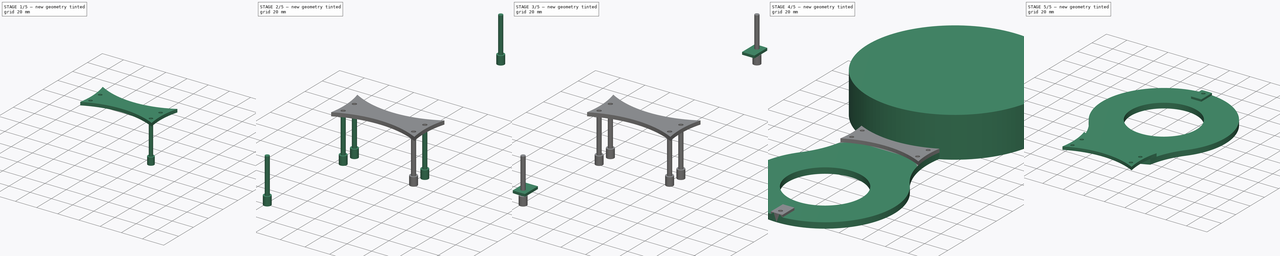
[diagram: build sequence overview — one tinted view per stage of 5, left to right]
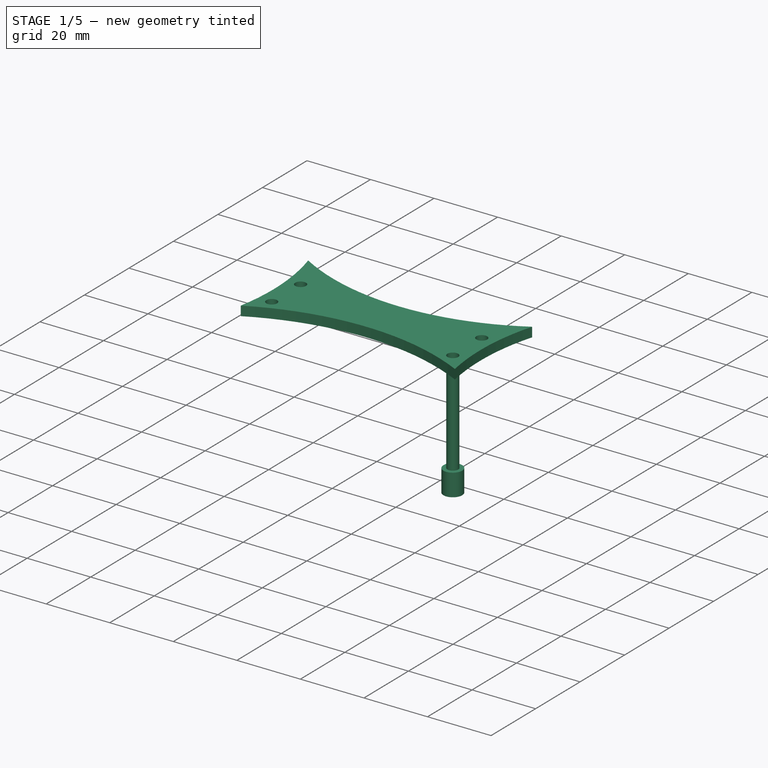
[diagram: stage 1 of 5 — iso view after this stage's code; geometry added in this stage tinted green]
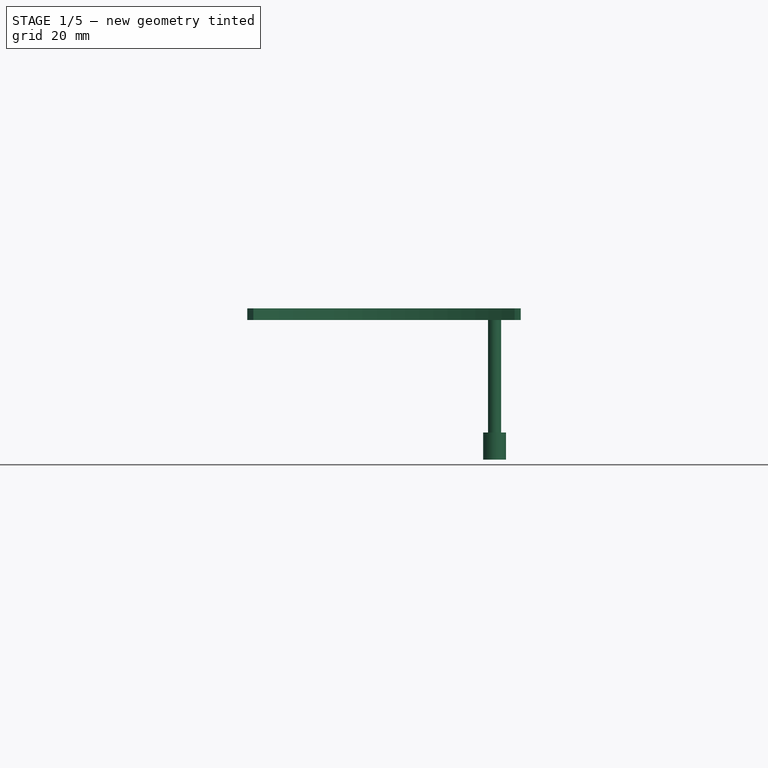
[diagram: stage 1 of 5 — front view after this stage's code; geometry added in this stage tinted green]
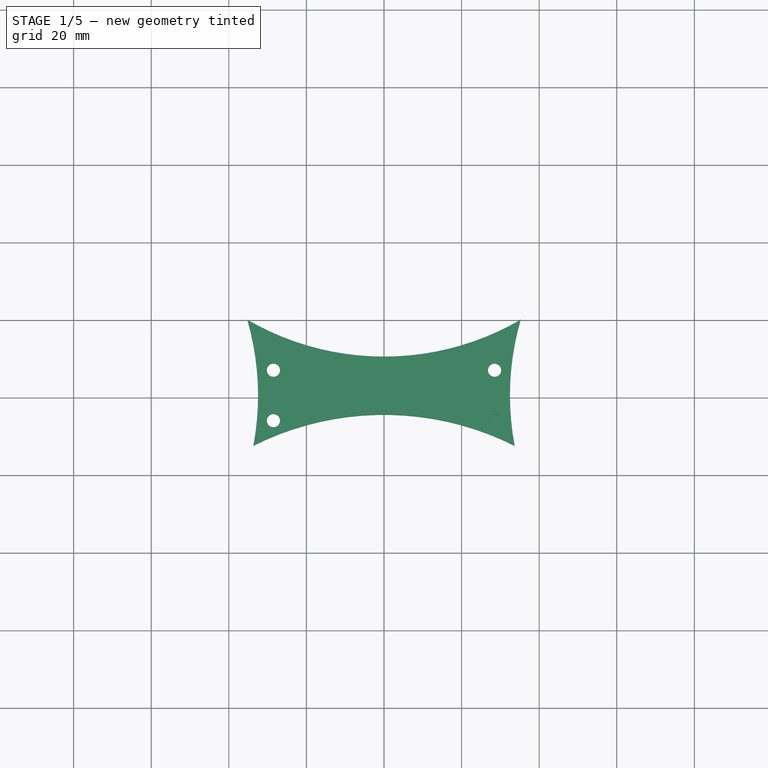
[diagram: stage 1 of 5 — top view after this stage's code; geometry added in this stage tinted green]
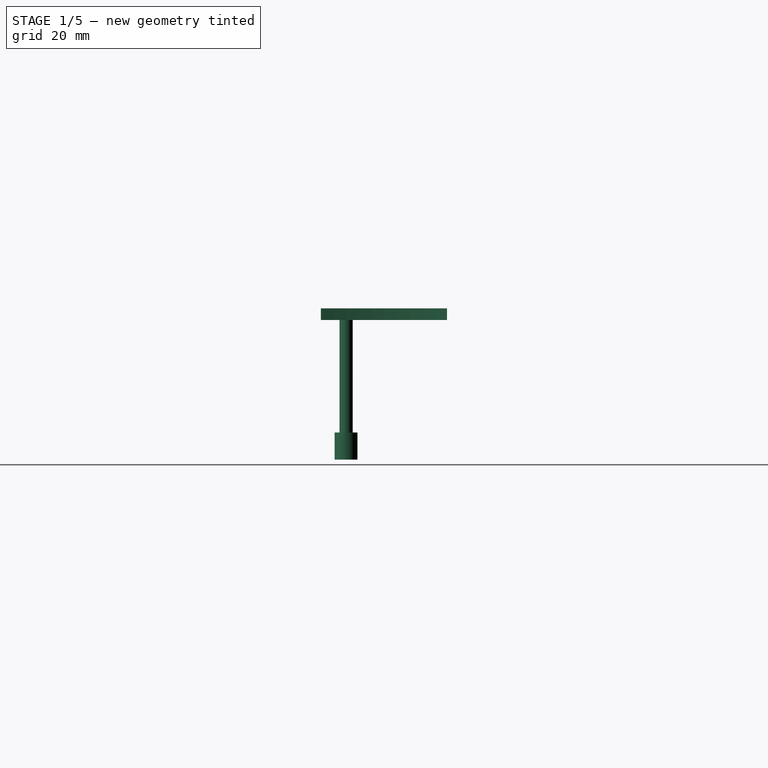
[diagram: stage 1 of 5 — right view after this stage's code; geometry added in this stage tinted green]
FCSTD DOCUMENT  (FreeCAD 0.16R6703 (Git))
Label: Art2BodyBCover
License: All rights reserved
LicenseURL: http://en.wikipedia.org/wiki/All_rights_reserved
objects: Part::FeaturePython×11, Part::MultiFuse×4, Sketcher::SketchObject×4, PartDesign::Pad×4, Part::Cut×3, Part::Cylinder×2, App::DocumentObjectGroup×1
note: 32 computed .brp shape members not serialized (recipe doc carries the construction recipe); baked Part::Feature solids carry a one-line shape summary decoded from their .brp

FEATURE [Part::Cylinder] Cylinder  label="M3BoltHead"
  Angle = 360
  Height = 7
  Radius = 2.95
FEATURE [Part::Cylinder] Cylinder001  label="M3BoltBody"
  Angle = 360
  Height = 30
  Placement = pos=(0,0,6) rot=(0,0,1;0rad)
  Radius = 1.7
FEATURE [Part::MultiFuse] Fusion  label="M3Bolt"
  Shapes = -> [Cylinder001,Cylinder]
FEATURE [Part::FeaturePython] Clone192  label="Clone of M3Bolt058"  # Draft clone (typed FeaturePython)
  Objects = -> [Fusion]
  Placement = pos=(28.5,73.5,-31) rot=(0,0,1;0rad)
  Scale = (1,1,1)
FEATURE [Sketcher::SketchObject] Sketch023
  Placement = pos=(0,0,5) rot=(0,0,1;0rad)
  sketch-geometry (10):
    g0: ArcOfCircle CenterX=0 CenterY=0 CenterZ=0 NormalX=0 NormalY=0 NormalZ=1 Radius=75 StartAngle=1.10499 EndAngle=2.0366
    g1: ArcOfCircle CenterX=0 CenterY=160 CenterZ=0 NormalX=0 NormalY=0 NormalZ=1 Radius=70 StartAngle=4.18472 EndAngle=5.24006
    g2: ArcOfCircle CenterX=102.47 CenterY=80 CenterZ=0 NormalX=0 NormalY=0 NormalZ=1 Radius=70 StartAngle=2.85897 EndAngle=3.32825
    g3: ArcOfCircle CenterX=-102.47 CenterY=80 CenterZ=0 NormalX=0 NormalY=0 NormalZ=1 Radius=70 StartAngle=6.09653 EndAngle=6.56581
    g4: LineSegment [constr] StartX=-102.47 StartY=80 StartZ=0 EndX=102.47 EndY=80 EndZ=0
    g5: Circle [constr] CenterX=0 CenterY=160 CenterZ=0 NormalX=0 NormalY=0 NormalZ=1 Radius=60
    g6: Circle CenterX=-28.5 CenterY=73.5 CenterZ=0 NormalX=0 NormalY=0 NormalZ=1 Radius=1.7
    g7: Circle CenterX=-28.5 CenterY=86.5 CenterZ=0 NormalX=0 NormalY=0 NormalZ=1 Radius=1.7
    g8: Circle CenterX=28.5 CenterY=86.5 CenterZ=0 NormalX=0 NormalY=0 NormalZ=1 Radius=1.7
    g9: Circle CenterX=28.5 CenterY=73.5 CenterZ=0 NormalX=0 NormalY=0 NormalZ=1 Radius=1.7
  constraints (28):
    c: Coincident(g0,g-1)
    c: PointOnObject(g1,g-2)
    c: Coincident(g2,g1)
    c: Coincident(g2,g0)
    c: Coincident(g3,g1)
    c: Coincident(g3,g0)
    c: Equal(g3,g2)
    c: Coincident(g4,g3)
    c: Coincident(g4,g2)
    c: Horizontal(g4)
    c: Radius(g0) = 75
    c: DistanceY(g-1,g1) = 160
    c: DistanceY(g-1,g2) = 80
    c: Coincident(g5,g1)
    c: Radius(g5) = 60
    c: Symmetric(g2,g3,g-2)
    c: Radius(g1) = 70
    c: Tangent(g2,g5)
    c: Radius(g2) = 70
    c: Equal(g9,g8)
    c: Equal(g8,g7)
    c: Equal(g7,g6)
    c: Symmetric(g6,g7,g4)
    c: Symmetric(g6,g9,g-2)
    c: Symmetric(g9,g8,g4)
    c: DistanceY(g6,g7) = 13
    c: DistanceX(g7,g8) = 57
    c: Radius(g6) = 1.7
FEATURE [PartDesign::Pad] Pad
  Length = 3
  Length2 = 100
  Placement = pos=(0,0,5) rot=(0,0,1;0rad)
  Sketch = -> Sketch023
  Type = 0
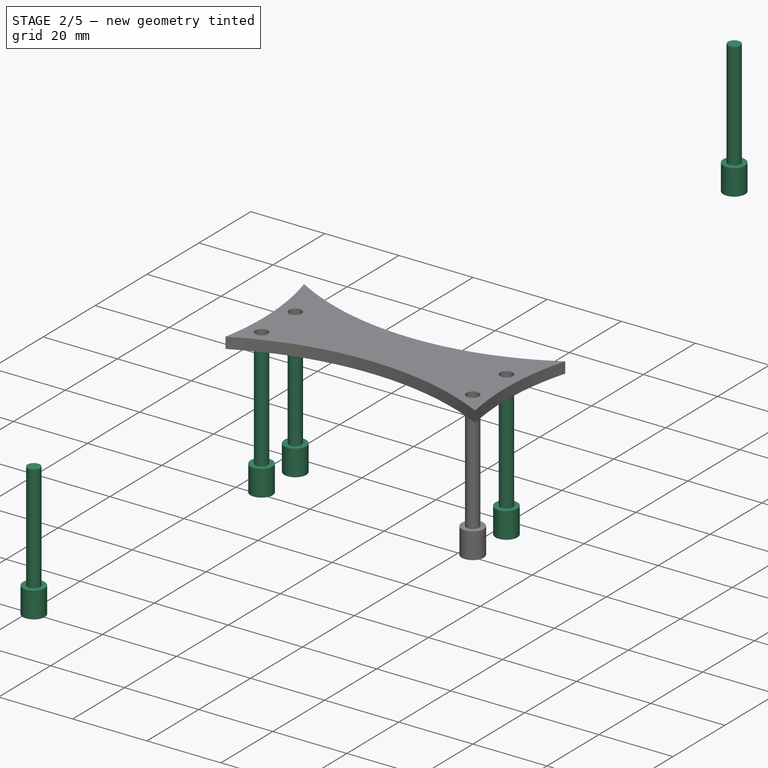
[diagram: stage 2 of 5 — iso view after this stage's code; geometry added in this stage tinted green]
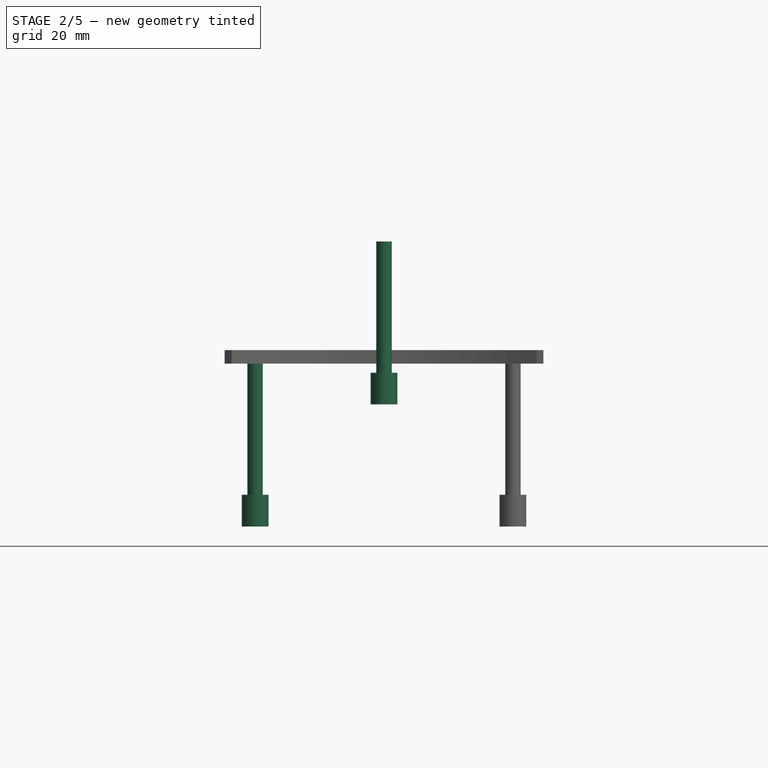
[diagram: stage 2 of 5 — front view after this stage's code; geometry added in this stage tinted green]
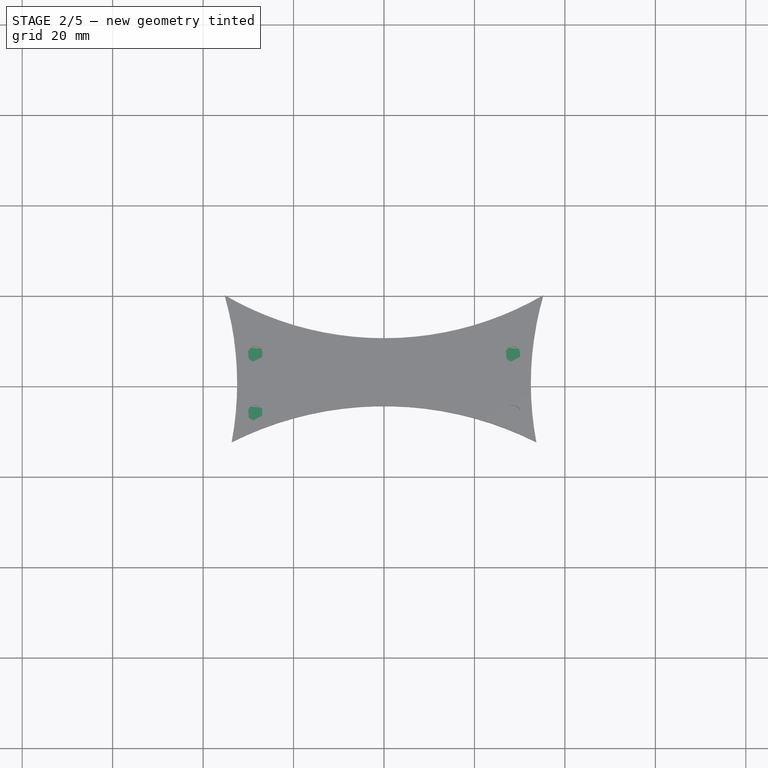
[diagram: stage 2 of 5 — top view after this stage's code; geometry added in this stage tinted green]
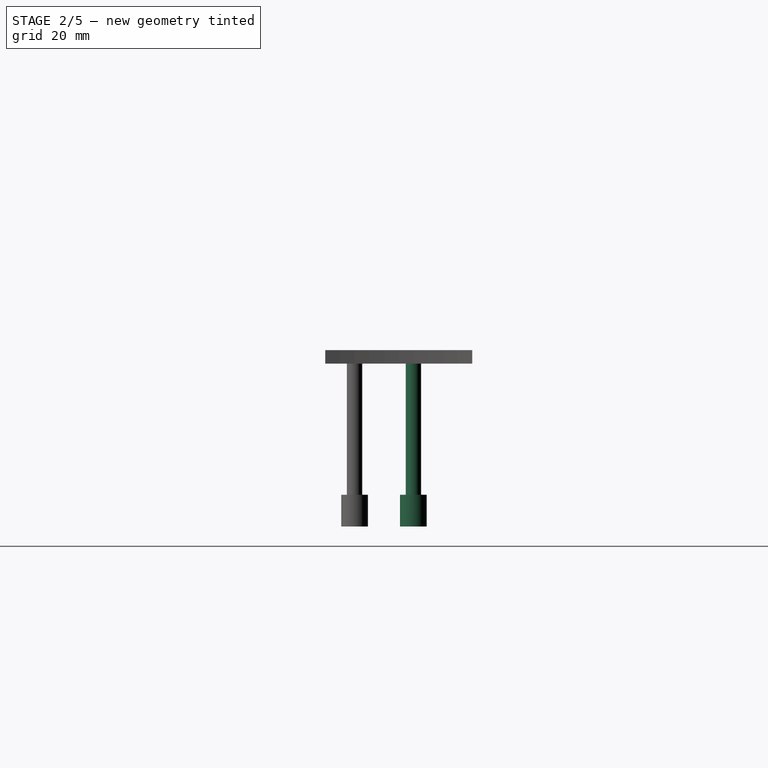
[diagram: stage 2 of 5 — right view after this stage's code; geometry added in this stage tinted green]
FEATURE [Part::FeaturePython] Clone186  label="Clone of M3Bolt053"  # Draft clone (typed FeaturePython)
  Objects = -> [Fusion]
  Placement = pos=(0,215,-4) rot=(0,0,1;0rad)
  Scale = (1,1,1)
FEATURE [Part::FeaturePython] Clone187  label="Clone of M3Bolt054"  # Draft clone (typed FeaturePython)
  Objects = -> [Fusion]
  Placement = pos=(0,-55,-4) rot=(0,0,1;0rad)
  Scale = (1,1,1)
FEATURE [Part::FeaturePython] Clone189  label="Clone of M3Bolt055"  # Draft clone (typed FeaturePython)
  Objects = -> [Fusion]
  Placement = pos=(-28.5,86.5,-31) rot=(0,0,1;0rad)
  Scale = (1,1,1)
FEATURE [Part::FeaturePython] Clone190  label="Clone of M3Bolt056"  # Draft clone (typed FeaturePython)
  Objects = -> [Fusion]
  Placement = pos=(-28.5,73.5,-31) rot=(0,0,1;0rad)
  Scale = (1,1,1)
FEATURE [Part::FeaturePython] Clone191  label="Clone of M3Bolt057"  # Draft clone (typed FeaturePython)
  Objects = -> [Fusion]
  Placement = pos=(28.5,86.5,-31) rot=(0,0,1;0rad)
  Scale = (1,1,1)
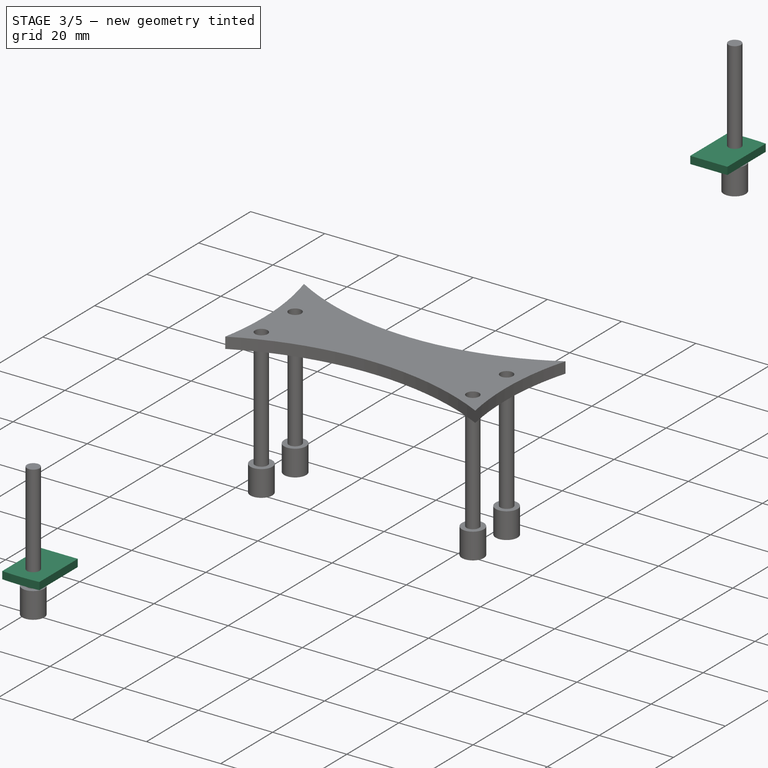
[diagram: stage 3 of 5 — iso view after this stage's code; geometry added in this stage tinted green]
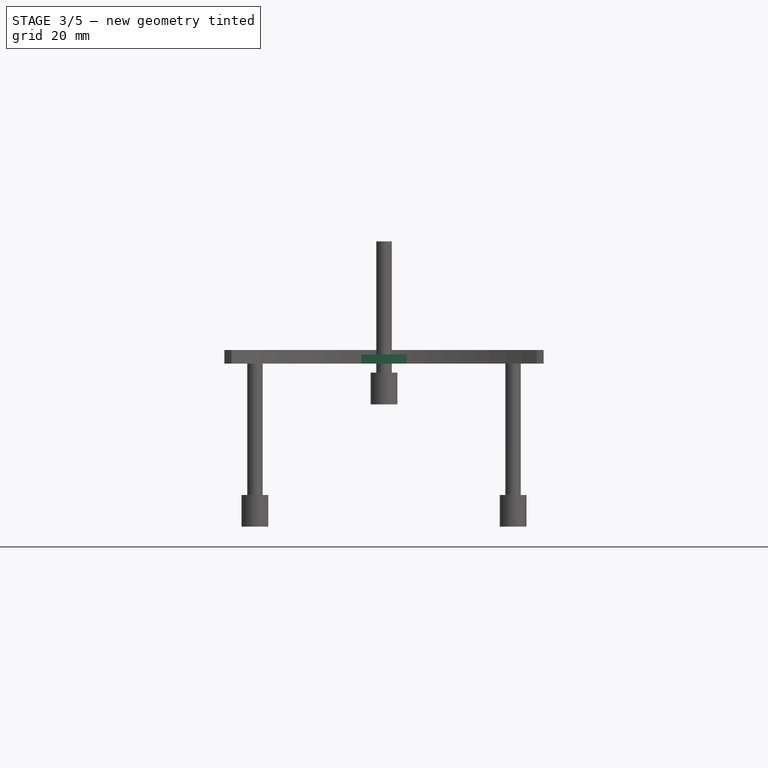
[diagram: stage 3 of 5 — front view after this stage's code; geometry added in this stage tinted green]
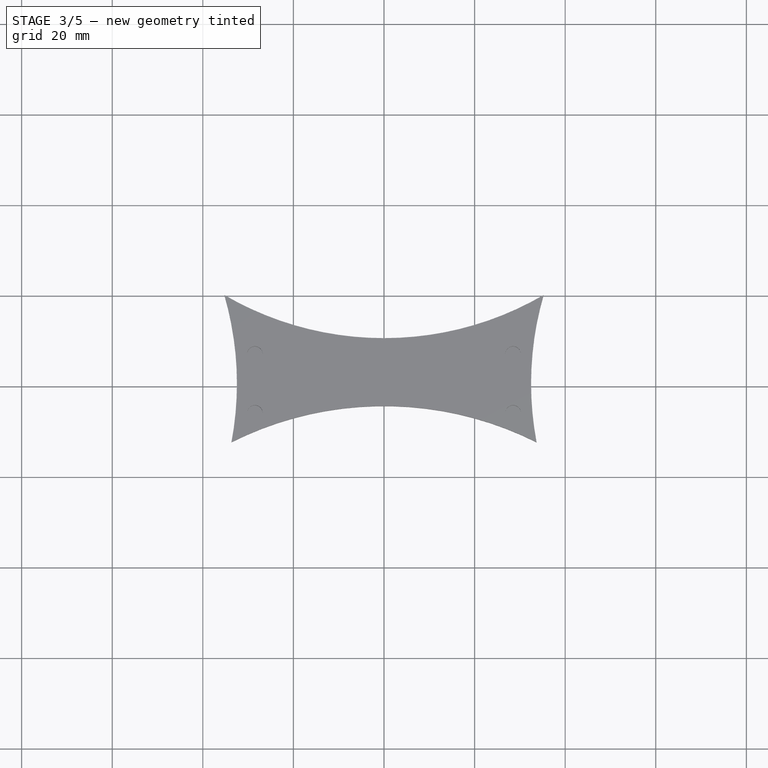
[diagram: stage 3 of 5 — top view after this stage's code; geometry added in this stage tinted green]
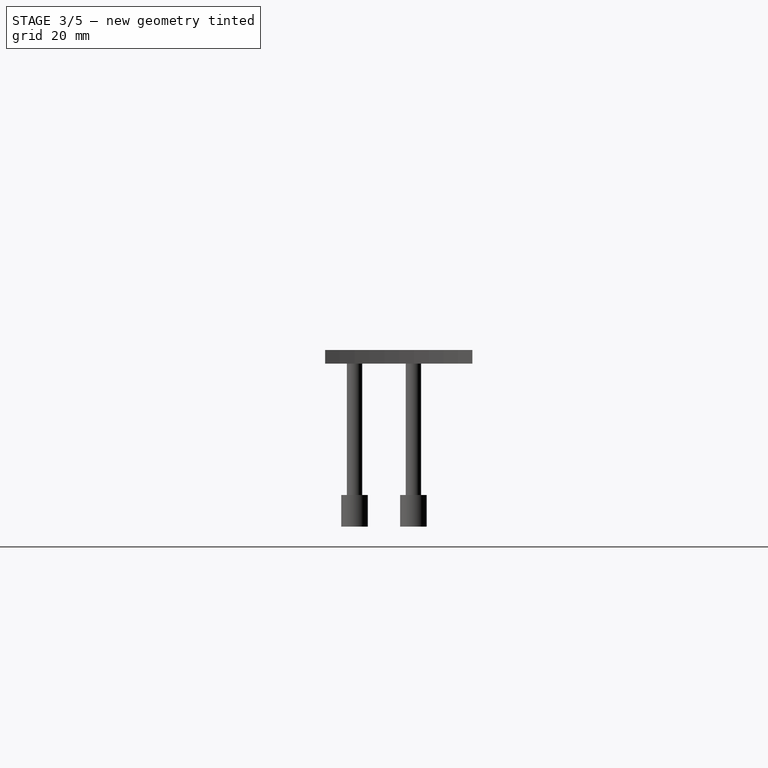
[diagram: stage 3 of 5 — right view after this stage's code; geometry added in this stage tinted green]
FEATURE [Sketcher::SketchObject] Sketch032
  sketch-geometry (4):
    g0: ArcOfCircle CenterX=0 CenterY=0 CenterZ=0 NormalX=0 NormalY=0 NormalZ=1 Radius=60 StartAngle=1.48737 EndAngle=1.65423
    g1: LineSegment StartX=5 StartY=59.7913 StartZ=0 EndX=5 EndY=45 EndZ=0
    g2: LineSegment StartX=5 StartY=45 StartZ=0 EndX=-5 EndY=45 EndZ=0
    g3: LineSegment StartX=-5 StartY=45 StartZ=0 EndX=-5 EndY=59.7913 EndZ=0
  constraints (12):
    c: Coincident(g0,g-1)
    c: Coincident(g1,g2)
    c: Coincident(g2,g3)
    c: Horizontal(g2)
    c: Vertical(g1)
    c: Vertical(g3)
    c: Radius(g0) = 60
    c: DistanceX(g2) = -10
    c: DistanceX(g-1,g1) = 5
    c: DistanceY(g-1,g1) = 45
    c: Coincident(g0,g1)
    c: Coincident(g0,g3)
FEATURE [PartDesign::Pad] Pad023  label="Art2CoverSupportMaster"
  Length = 2
  Length2 = 100
  Sketch = -> Sketch032
  Type = 0
FEATURE [Part::FeaturePython] Clone184  label="Clone of Art2CoverSupportMaster"  # Draft clone (typed FeaturePython)
  Objects = -> [Pad023]
  Placement = pos=(0,160,5) rot=(0,0,1;0rad)
  Scale = (1,1,1)
FEATURE [Part::FeaturePython] Clone185  label="Clone of Art2CoverSupportMaster001"  # Draft clone (typed FeaturePython)
  Objects = -> [Pad023]
  Placement = pos=(0,0,5) rot=(0,0,1;3.14159rad)
  Scale = (1,1,1)
FEATURE [Part::MultiFuse] Fusion070
  Shapes = -> [Clone189,Clone191,Clone190,Clone192,Clone186,Clone187]
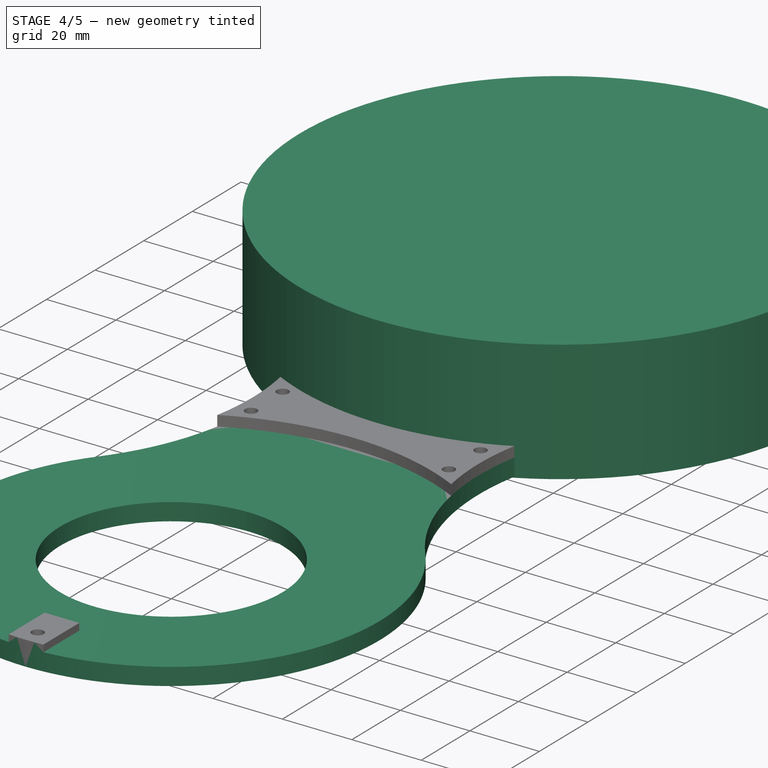
[diagram: stage 4 of 5 — iso view after this stage's code; geometry added in this stage tinted green]
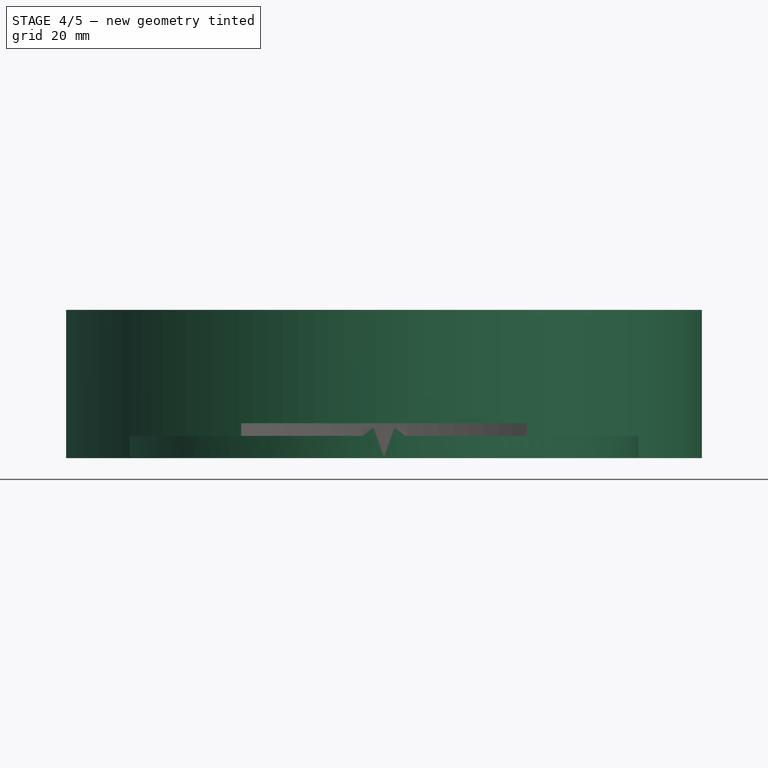
[diagram: stage 4 of 5 — front view after this stage's code; geometry added in this stage tinted green]
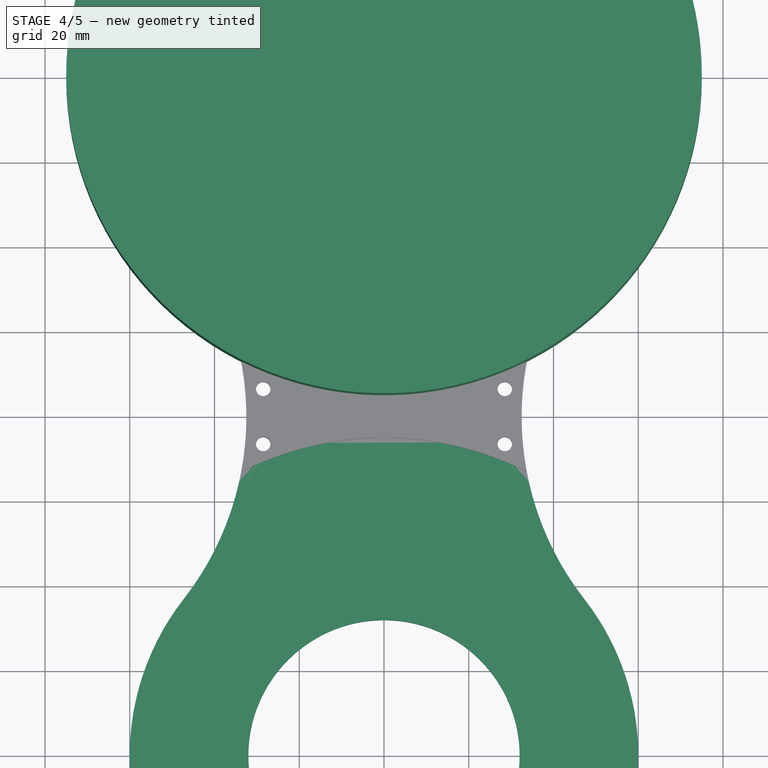
[diagram: stage 4 of 5 — top view after this stage's code; geometry added in this stage tinted green]
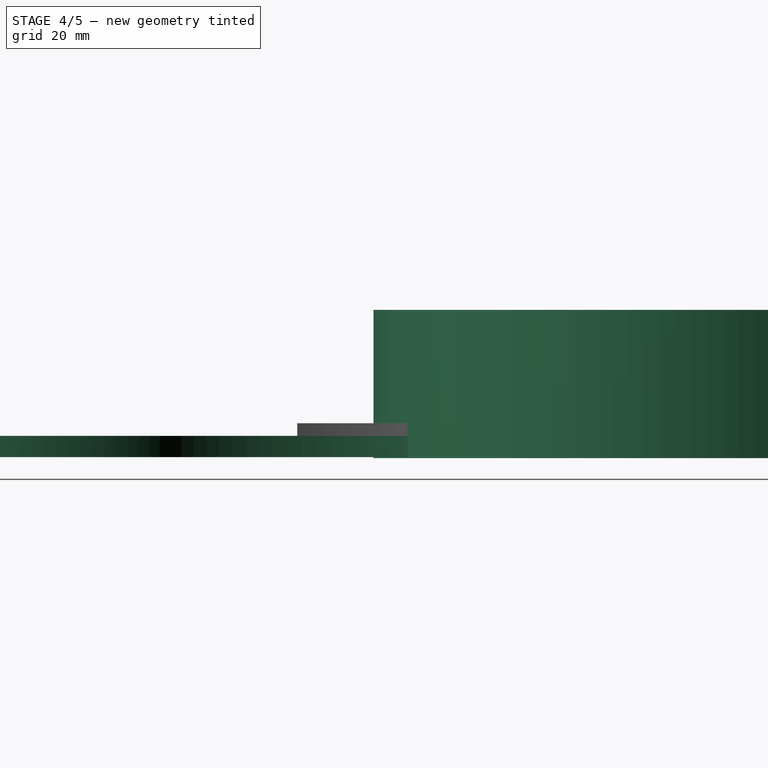
[diagram: stage 4 of 5 — right view after this stage's code; geometry added in this stage tinted green]
FEATURE [Sketcher::SketchObject] Sketch031
  sketch-geometry (6):
    g0: ArcOfCircle CenterX=0 CenterY=0 CenterZ=0 NormalX=0 NormalY=0 NormalZ=1 Radius=60 StartAngle=2.47872 EndAngle=6.94606
    g1: ArcOfCircle CenterX=102.47 CenterY=80 CenterZ=0 NormalX=0 NormalY=0 NormalZ=1 Radius=70 StartAngle=2.47872 EndAngle=3.80447
    g2: ArcOfCircle CenterX=-102.47 CenterY=80 CenterZ=0 NormalX=0 NormalY=0 NormalZ=1 Radius=70 StartAngle=5.62031 EndAngle=6.94606
    g3: ArcOfCircle CenterX=0 CenterY=160 CenterZ=0 NormalX=0 NormalY=0 NormalZ=1 Radius=60 StartAngle=5.62031 EndAngle=10.0877
    g4: Circle CenterX=0 CenterY=0 CenterZ=0 NormalX=0 NormalY=0 NormalZ=1 Radius=32
    g5: Circle CenterX=0 CenterY=160 CenterZ=0 NormalX=0 NormalY=0 NormalZ=1 Radius=32
  constraints (19):
    c: Coincident(g2,g0)
    c: Coincident(g3,g1)
    c: Equal(g3,g0)
    c: Coincident(g2,g3)
    c: DistanceY(g-1,g3) = 160
    c: Radius(g0) = 60
    c: PointOnObject(g3,g-2)
    c: DistanceY(g2,g1) = 0
    c: Equal(g2,g1)
    c: Coincident(g1,g0)
    c: Coincident(g0,g-1)
    c: DistanceY(g2,g1) = 0
    c: DistanceX(g0,g2) = 0
    c: Tangent(g0,g1)
    c: Radius(g1) = 70
    c: Coincident(g4,g-1)
    c: Coincident(g5,g3)
    c: Equal(g5,g4)
    c: Radius(g4) = 32
FEATURE [PartDesign::Pad] Pad022
  Length = 5
  Length2 = 100
  Sketch = -> Sketch031
  Type = 0
FEATURE [Part::MultiFuse] Fusion067
  Shapes = -> [Pad022,Clone185,Clone184]
FEATURE [Part::Cut] Cut059  label="Art2BodyBCover"
  Base = -> Fusion067
  Tool = -> Fusion070
FEATURE [App::DocumentObjectGroup] Group  label="Master"
  Group = -> [Fusion,Pad023]
FEATURE [Sketcher::SketchObject] Sketch029
  Placement = pos=(0,0,-0.25) rot=(0,0,1;0rad)
  sketch-geometry (1):
    g0: Circle CenterX=0 CenterY=160 CenterZ=0 NormalX=0 NormalY=0 NormalZ=1 Radius=75
  constraints (3):
    c: PointOnObject(g0,g-2)
    c: DistanceY(g-1,g0) = 160
    c: Radius(g0) = 75
FEATURE [PartDesign::Pad] Pad049
  Length = 35
  Length2 = 100
  Placement = pos=(0,0,-0.25) rot=(0,0,1;0rad)
  Sketch = -> Sketch029
  Type = 0
FEATURE [Part::FeaturePython] Clone  label="Clone of Art2BodyBCover"  # Draft clone (typed FeaturePython)
  Objects = -> [Cut059]
  Scale = (1,1,1)
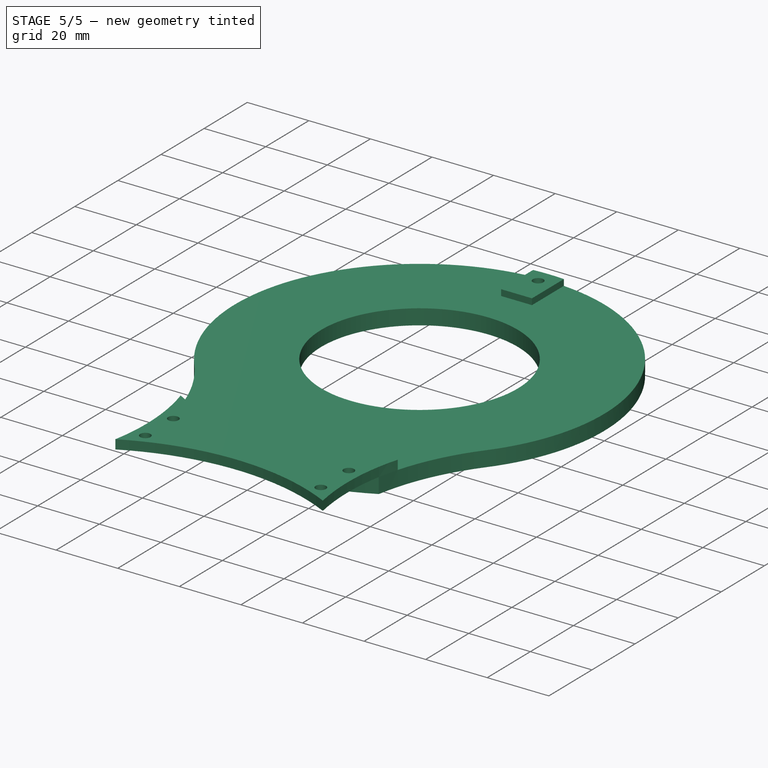
[diagram: stage 5 of 5 — iso view after this stage's code; geometry added in this stage tinted green]
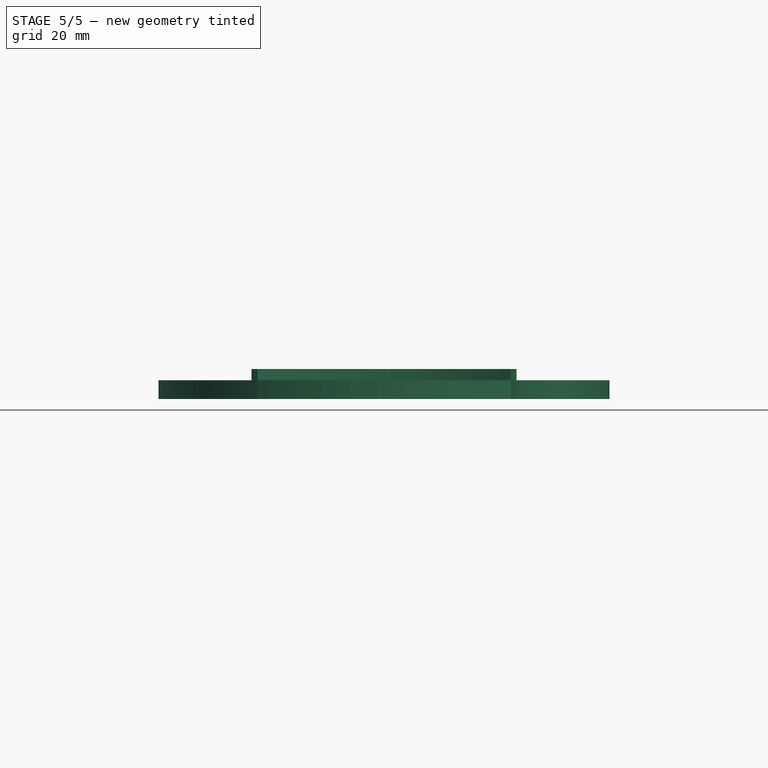
[diagram: stage 5 of 5 — front view after this stage's code; geometry added in this stage tinted green]
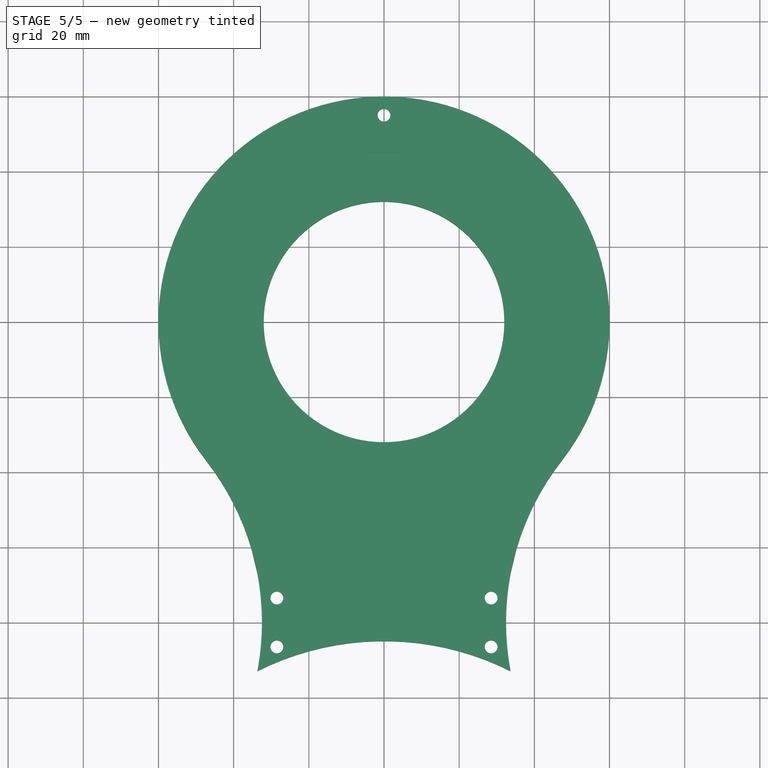
[diagram: stage 5 of 5 — top view after this stage's code; geometry added in this stage tinted green]
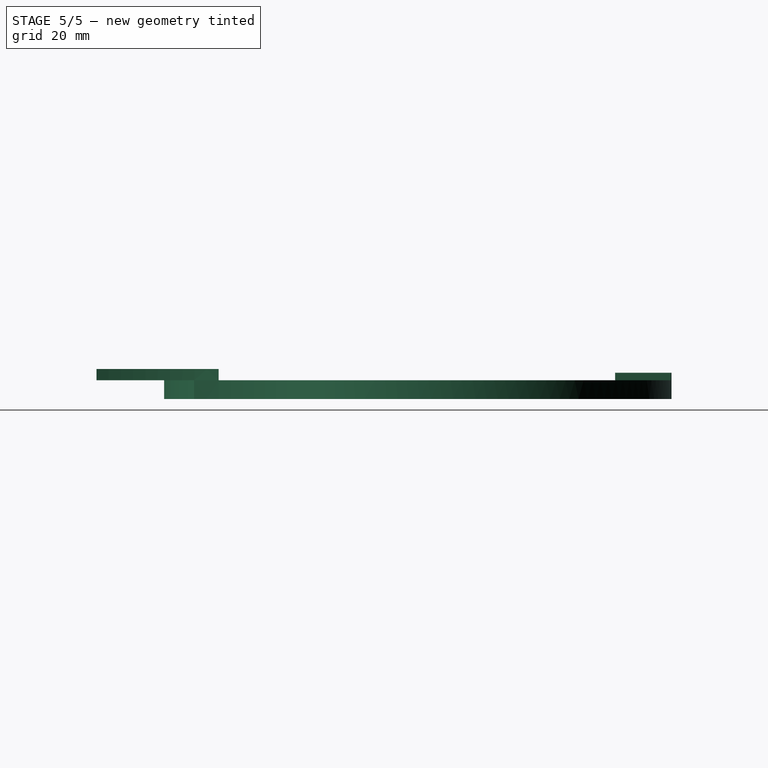
[diagram: stage 5 of 5 — right view after this stage's code; geometry added in this stage tinted green]
FEATURE [Part::FeaturePython] Clone193  label="Clone of Art2BodyBCover001"  # Draft clone (typed FeaturePython)
  Objects = -> [Cut059]
  Scale = (1,1,1)
FEATURE [Part::Cut] Cut  label="Art2BodyCoverBSmall1"
  Base = -> Clone
  Tool = -> Pad049
FEATURE [Part::FeaturePython] Clone194  label="Clone of Art2BodyCoverBSmall1"  # Draft clone (typed FeaturePython)
  Objects = -> [Cut]
  Scale = (1,1,1)
FEATURE [Part::Cut] Cut060
  Base = -> Clone193
  Tool = -> Clone194
FEATURE [Part::MultiFuse] Fusion071  label="Art2BodyCoverBSmall2"
  Shapes = -> [Cut060,Pad]
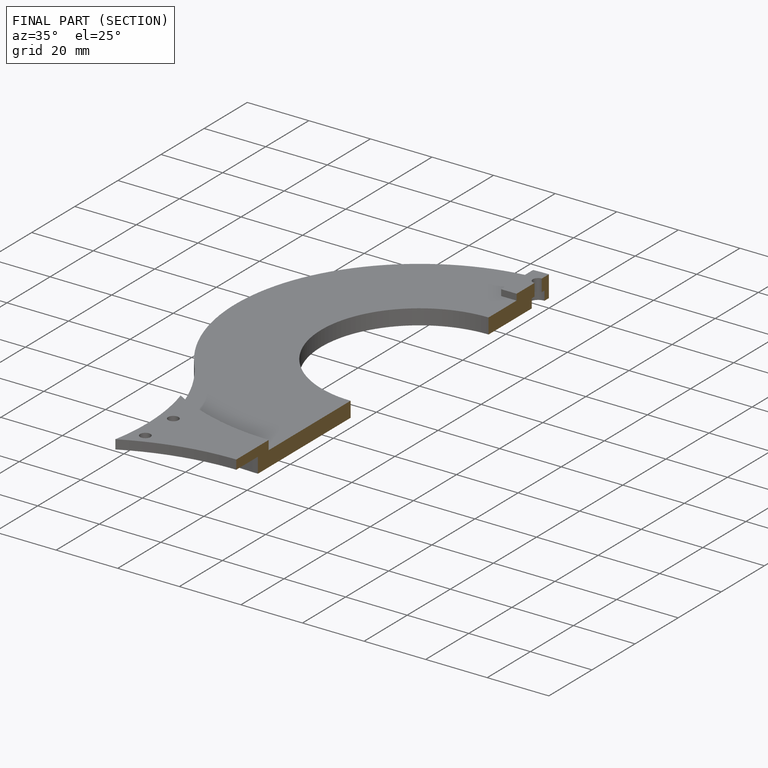
[diagram: finished part — half-section view (interior)]
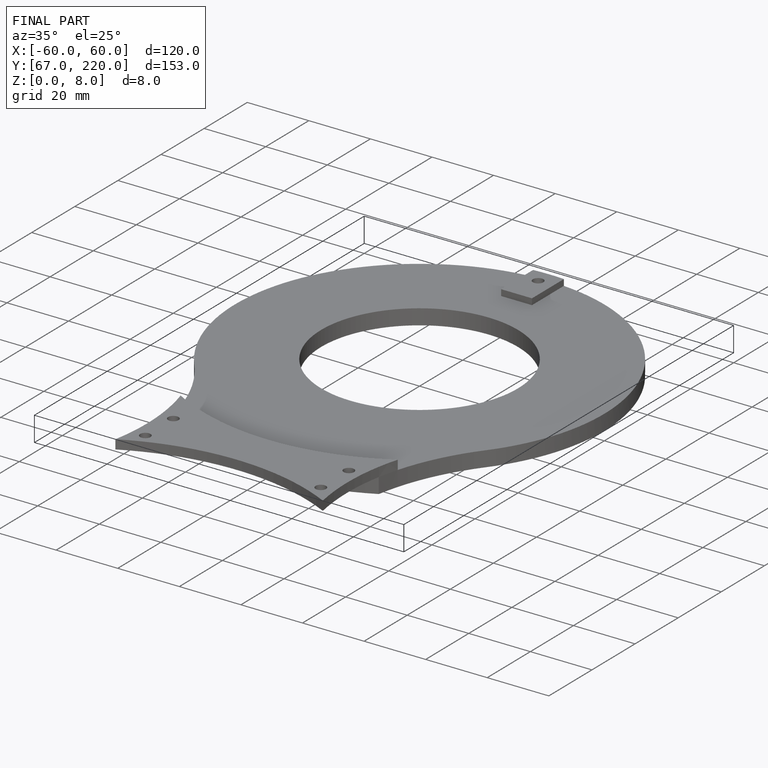
[diagram: finished part — iso view with bounding-box wireframe]
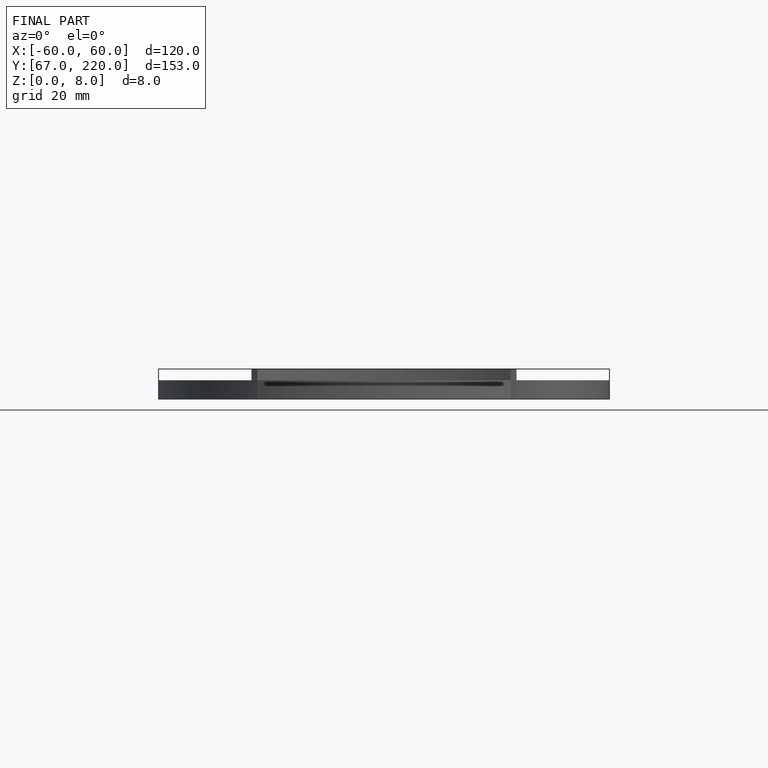
[diagram: finished part — front view with bounding-box wireframe]
